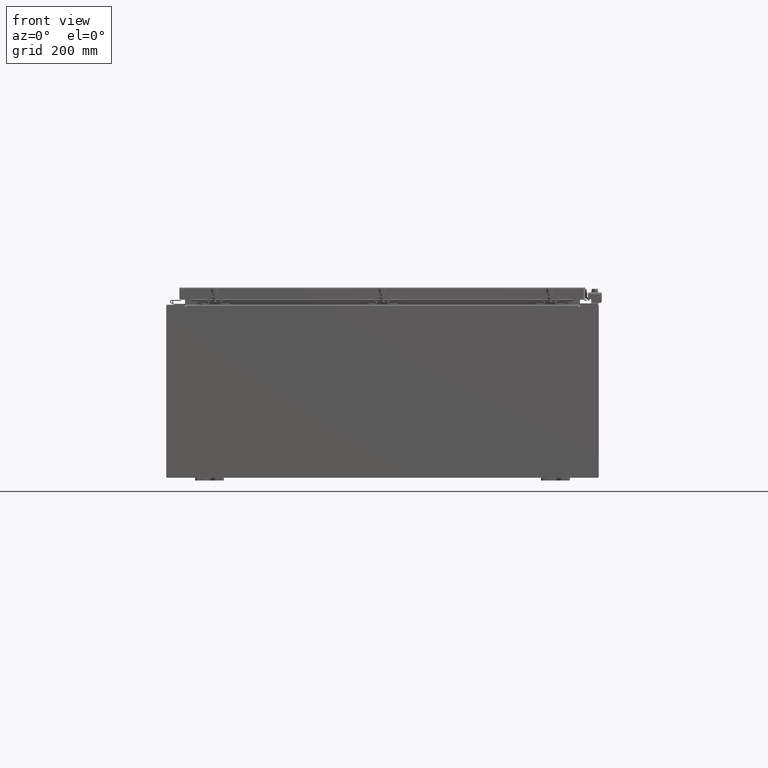
[diagram: clean part render]
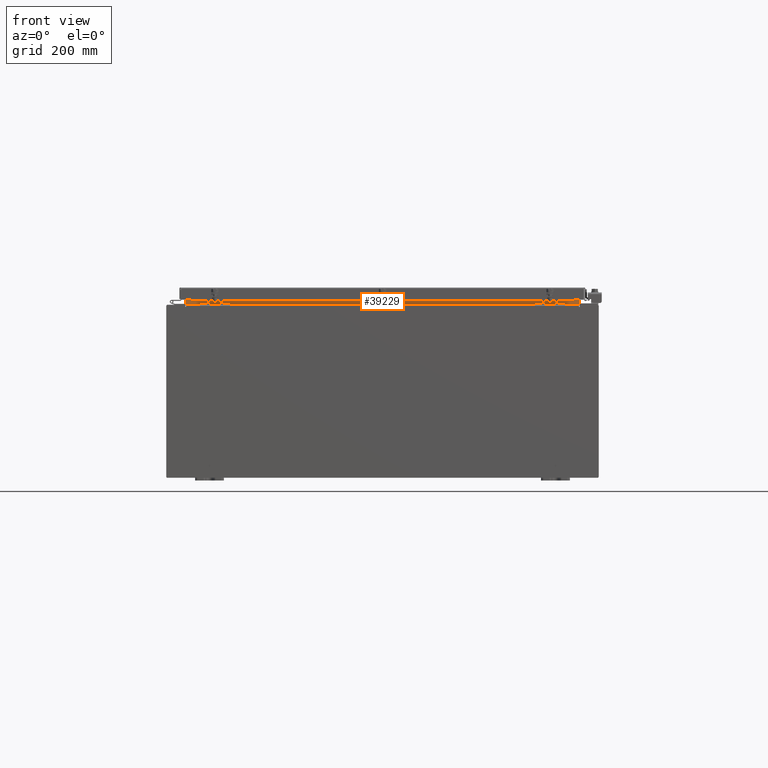
[diagram: same view with one face highlighted and labeled with its STEP entity id]
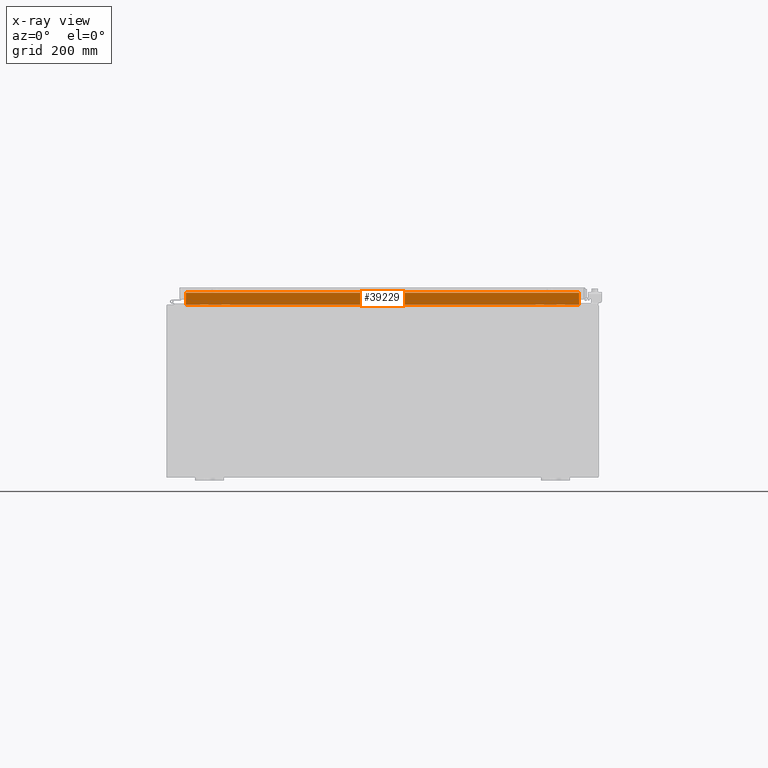
[diagram: x-ray of the same camera — body ghosted, the highlighted face saturated]
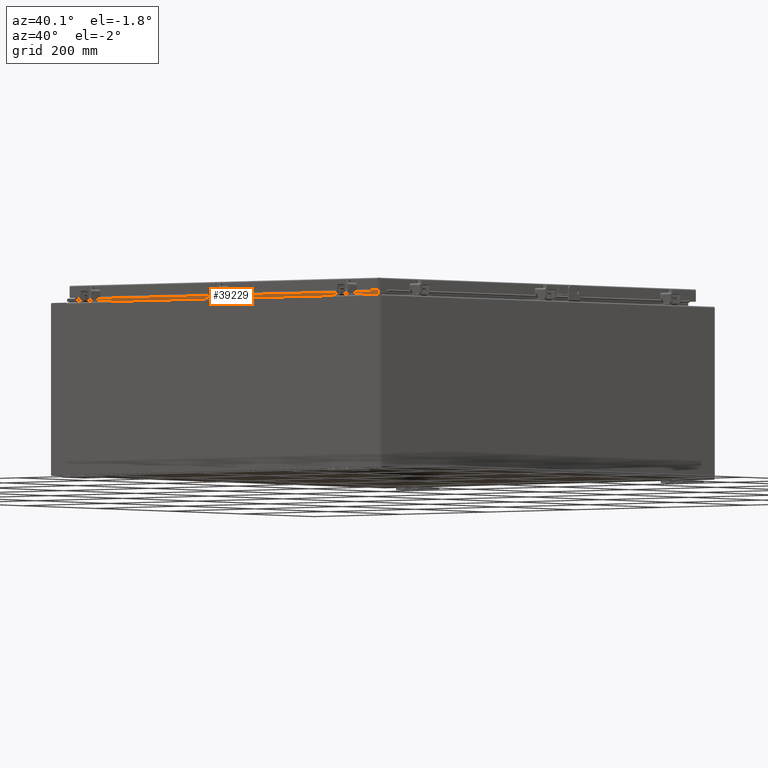
[diagram: same view with one face highlighted and labeled with its STEP entity id]
A machine part, front view. The second image highlights one B-rep face of the part: STEP entity #39229.
The next image is the same camera in x-ray: the body ghosted, the highlighted face saturated — about 0% of this face is hidden behind the body in this view.
A second angle (auxiliary view) of the same face is appended — the face is thin or edge-on in the first view.
In plain terms, the highlighted planar face has unit normal (0, -1, 0).
Its self-contained STEP definition (entity closure, byte-faithful):
#2330 = DIRECTION ( 'NONE',  ( -1.000000000000000000, -0.0000000000000000000, -0.0000000000000000000 ) ) ;
#2384 = LINE ( 'NONE', #31312, #27916 ) ;
#2543 = VERTEX_POINT ( 'NONE', #29787 ) ;
#3653 = DIRECTION ( 'NONE',  ( -0.0000000000000000000, -0.0000000000000000000, 1.000000000000000000 ) ) ;
#3837 = FACE_OUTER_BOUND ( 'NONE', #4835, .T. ) ;
#4090 = EDGE_CURVE ( 'NONE', #35013, #2543, #17815, .T. ) ;
#4835 = EDGE_LOOP ( 'NONE', ( #16910, #31266, #41298, #11513 ) ) ;
#9887 = DIRECTION ( 'NONE',  ( -0.0000000000000000000, -0.0000000000000000000, -1.000000000000000000 ) ) ;
#10384 = EDGE_CURVE ( 'NONE', #24183, #35013, #29007, .T. ) ;
#11513 = ORIENTED_EDGE ( 'NONE', *, *, #20774, .F. ) ;
#12187 = CARTESIAN_POINT ( 'NONE',  ( -13.63719999999999800, -1.300300000000000200, 6.837600000000003700 ) ) ;
#15314 = LINE ( 'NONE', #37057, #24225 ) ;
#15324 = DIRECTION ( 'NONE',  ( 0.0000000000000000000, 1.000000000000000000, 0.0000000000000000000 ) ) ;
#16910 = ORIENTED_EDGE ( 'NONE', *, *, #4090, .F. ) ;
#17815 = LINE ( 'NONE', #31761, #25650 ) ;
#20774 = EDGE_CURVE ( 'NONE', #2543, #24077, #2384, .T. ) ;
#24077 = VERTEX_POINT ( 'NONE', #34435 ) ;
#24183 = VERTEX_POINT ( 'NONE', #39457 ) ;
#24225 = VECTOR ( 'NONE', #3653, 39.37007874015748100 ) ;
#25270 = PLANE ( 'NONE',  #41412 ) ;
#25650 = VECTOR ( 'NONE', #9887, 39.37007874015748100 ) ;
#27916 = VECTOR ( 'NONE', #31363, 39.37007874015748100 ) ;
#29007 = LINE ( 'NONE', #39980, #35822 ) ;
#29787 = CARTESIAN_POINT ( 'NONE',  ( -13.63719999999999800, -1.300299999999999800, 6.013000000000003500 ) ) ;
#31266 = ORIENTED_EDGE ( 'NONE', *, *, #10384, .F. ) ;
#31312 = CARTESIAN_POINT ( 'NONE',  ( -13.63719999999999800, -1.300299999999999800, 6.013000000000003500 ) ) ;
#31363 = DIRECTION ( 'NONE',  ( 1.000000000000000000, 0.0000000000000000000, -4.006464660875052000E-017 ) ) ;
#31761 = CARTESIAN_POINT ( 'NONE',  ( -13.63719999999999800, -1.300299999999999800, 6.000000000000003600 ) ) ;
#31785 = EDGE_CURVE ( 'NONE', #24077, #24183, #15314, .T. ) ;
#34435 = CARTESIAN_POINT ( 'NONE',  ( 13.63720000000000000, -1.300299999999999800, 6.013000000000003500 ) ) ;
#35013 = VERTEX_POINT ( 'NONE', #12187 ) ;
#35356 = CARTESIAN_POINT ( 'NONE',  ( 0.0000000000000000000, -1.300299999999999800, 0.0000000000000000000 ) ) ;
#35822 = VECTOR ( 'NONE', #2330, 39.37007874015748100 ) ;
#37057 = CARTESIAN_POINT ( 'NONE',  ( 13.63720000000000400, -1.300299999999999800, 6.925300000000003600 ) ) ;
#38744 = DIRECTION ( 'NONE',  ( 0.0000000000000000000, -0.0000000000000000000, 1.000000000000000000 ) ) ;
#39229 = ADVANCED_FACE ( 'NONE', ( #3837 ), #25270, .T. ) ;
#39457 = CARTESIAN_POINT ( 'NONE',  ( 13.63720000000000400, -1.300299999999999800, 6.837600000000003700 ) ) ;
#39980 = CARTESIAN_POINT ( 'NONE',  ( 13.63720000000000400, -1.300300000000000200, 6.837600000000003700 ) ) ;
#41298 = ORIENTED_EDGE ( 'NONE', *, *, #31785, .F. ) ;
#41412 = AXIS2_PLACEMENT_3D ( 'NONE', #35356, #15324, #38744 ) ;